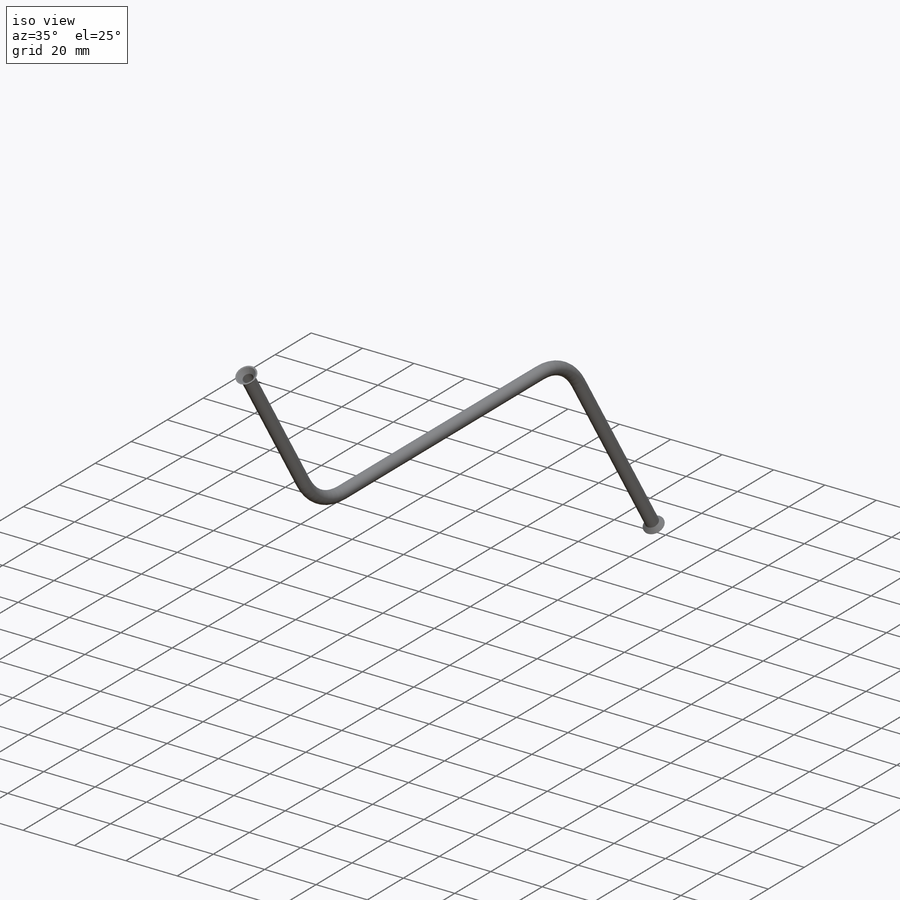
[diagram: iso view]
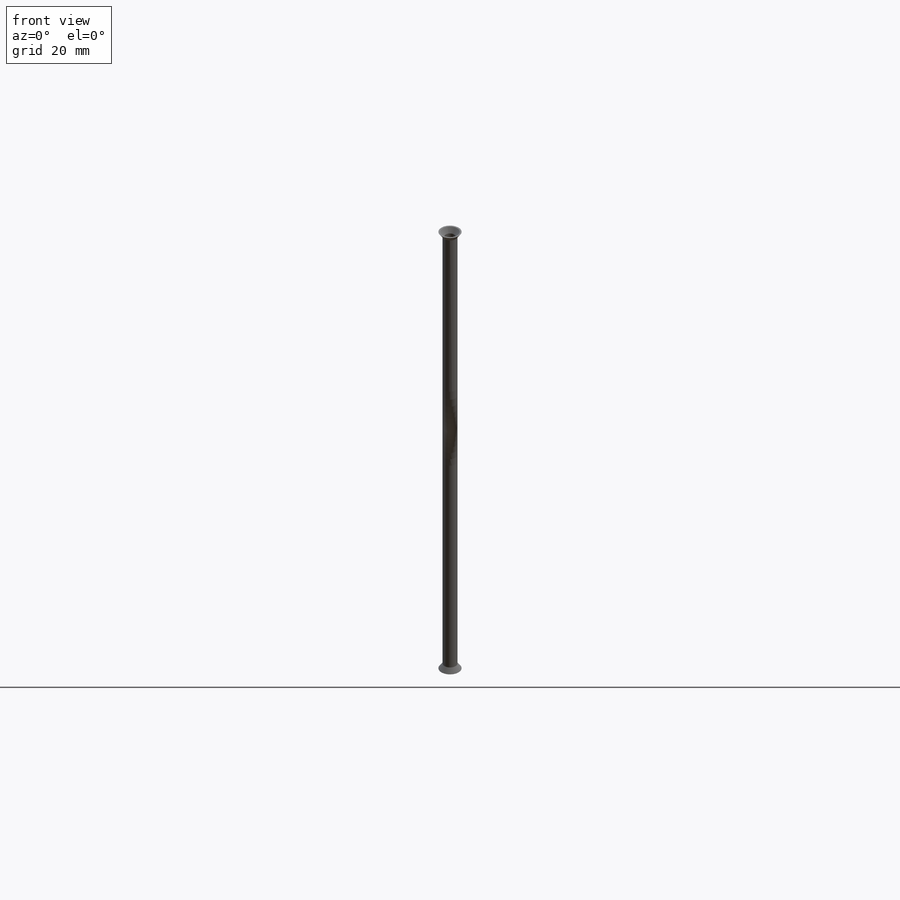
[diagram: front view]
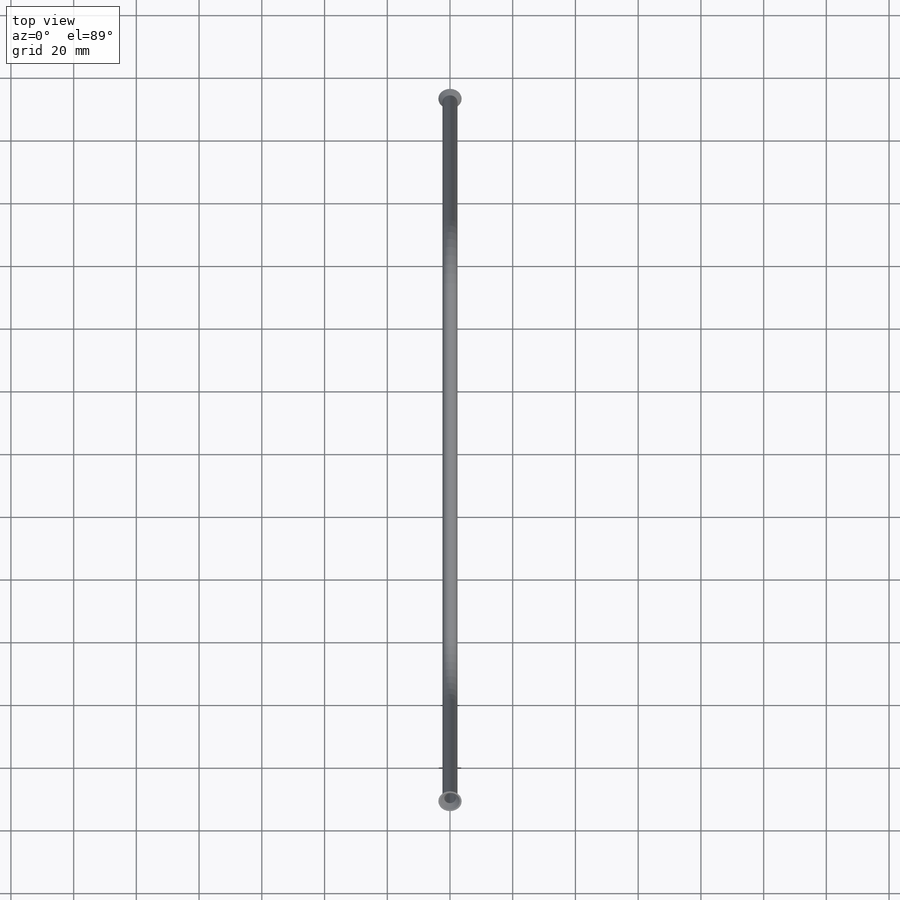
[diagram: top view]
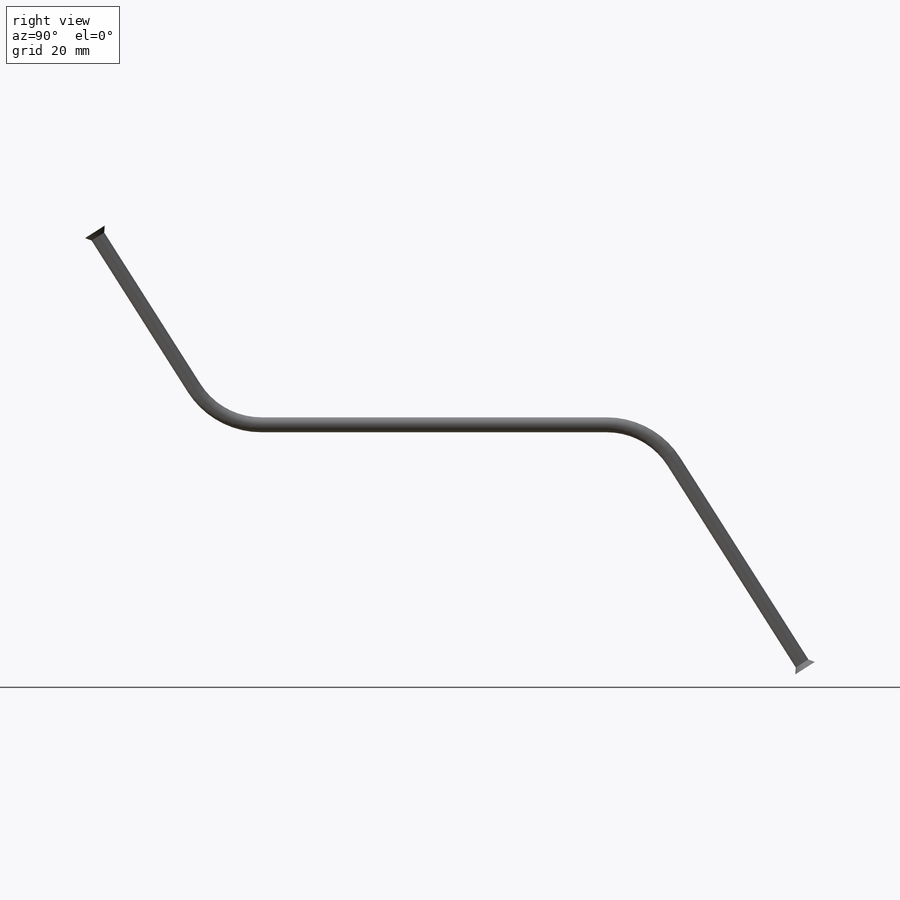
[diagram: right view]
SOLIDWORKS PART (.sldprt)
format: sldprt  version: not decoded by parser v0  size: 352,256 bytes
history: native  units: mm
features: sketch x8, sweep x2, extrude x2, cut_extrude x2, material x1 (+11 scaffold rows collapsed)
feature tree (26):
  scaffold x11  (default folders/planes/origin — collapsed)
  material  "Material <not specified>"
  sketch  "Sketch1"  dims[c1.D1=~15.043724mm c1.D2=4.7625mm c2.D1=0.5588mm]
  sketch  "Sketch2"  dims[D3=25.4mm D1=68.2625mm D2=101.6mm D4=76.2mm]
  sweep  "Sweep2"
  sketch  "Sketch3"  dims[D1=25.4mm D2=57.15mm]
  sketch  "Sketch4"
  sweep  "Sweep3"
  sketch  "Sketch5"
  extrude  "Boss-Extrude1"  Depth=1.778mm
  sketch  "Sketch6"
  cut_extrude  "Cut-Extrude1"  [1 undecoded]
  sketch  "Sketch7"
  extrude  "Boss-Extrude2"  Depth=1.778mm
  sketch  "Sketch8"
  cut_extrude  "Cut-Extrude2"  [1 undecoded]
decode coverage: 5 of 14 modeling features carry decoded parameters
note: ~ marks probable driven/reference dimensions
note: 2 parameter values undecoded
note: suppression state not decoded; provenance and decode notes live in map.json
